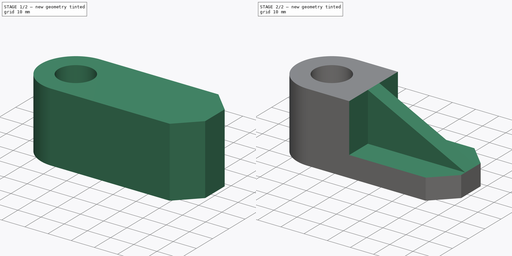
[diagram: build sequence overview — one tinted view per stage of 2, left to right]
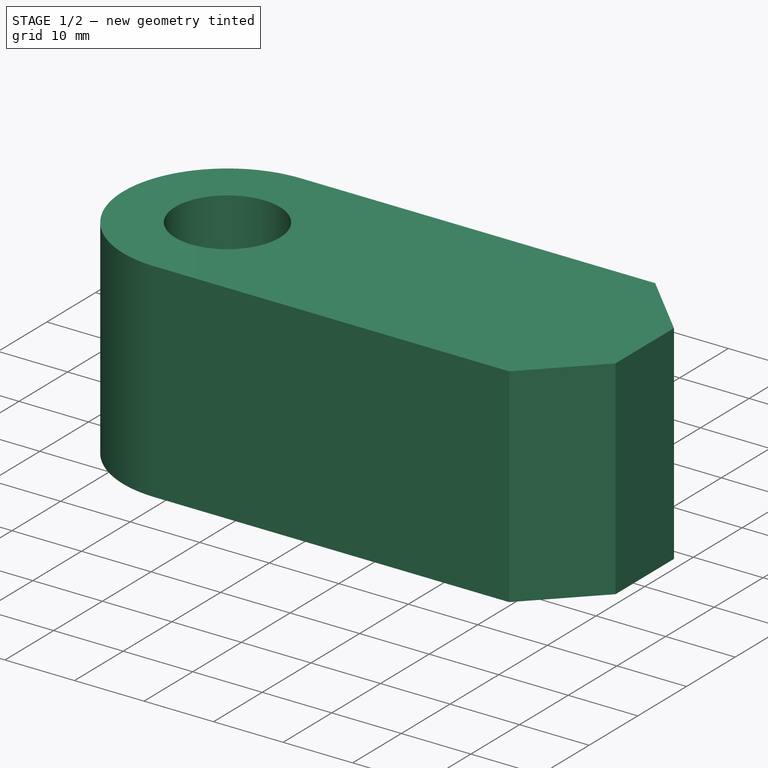
[diagram: stage 1 of 2 — iso view after this stage's code; geometry added in this stage tinted green]
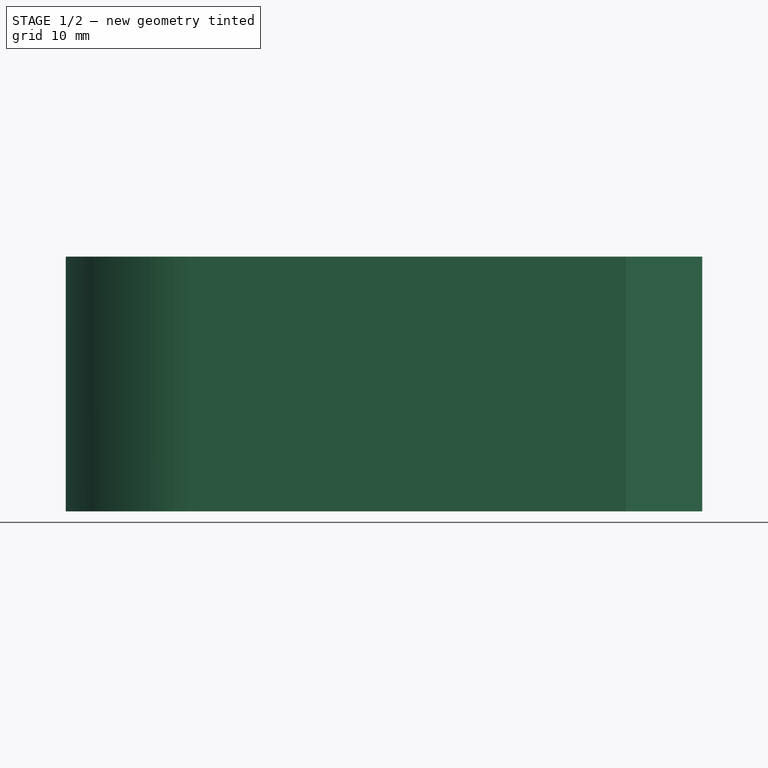
[diagram: stage 1 of 2 — front view after this stage's code; geometry added in this stage tinted green]
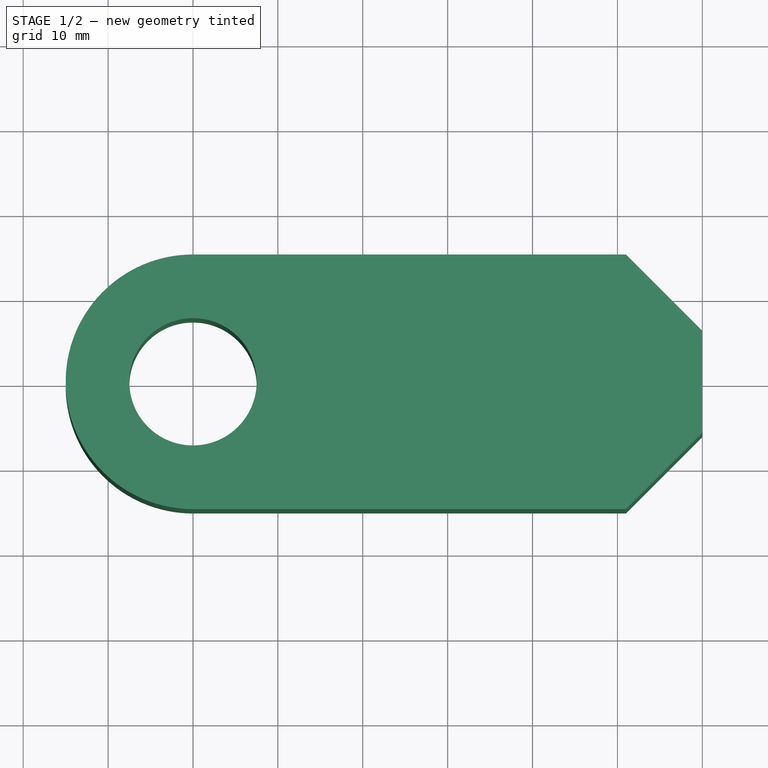
[diagram: stage 1 of 2 — top view after this stage's code; geometry added in this stage tinted green]
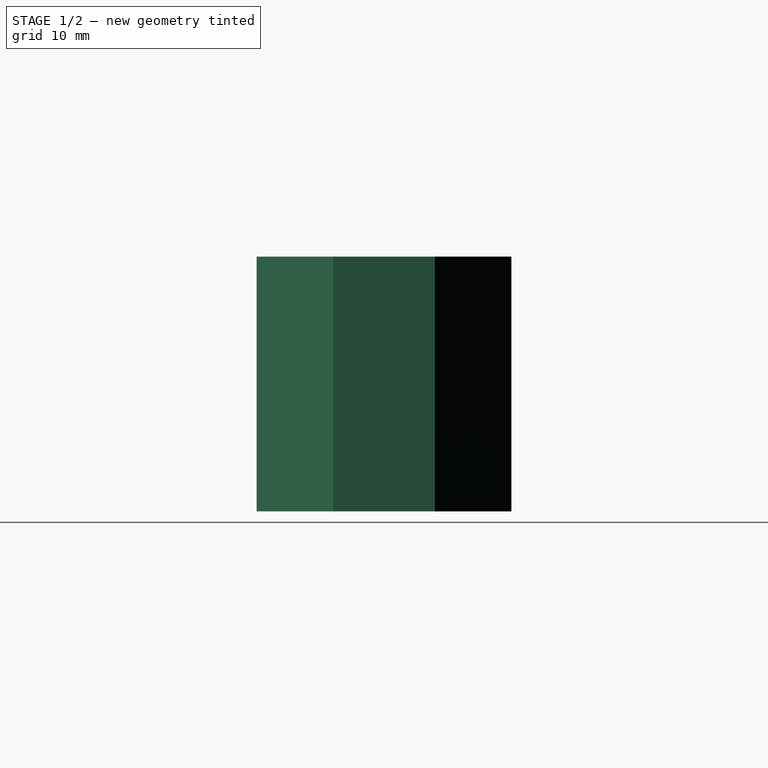
[diagram: stage 1 of 2 — right view after this stage's code; geometry added in this stage tinted green]
FCSTD DOCUMENT  (FreeCAD 0.17R9467 (Git))
Label: Beginner
License: All rights reserved
LicenseURL: http://en.wikipedia.org/wiki/All_rights_reserved
objects: Sketcher::SketchObject×4, PartDesign::Pocket×3, PartDesign::Pad×1, PartDesign::Plane×1, PartDesign::Body×1
note: 14 computed .brp shape members not serialized (recipe doc carries the construction recipe); baked Part::Feature solids carry a one-line shape summary decoded from their .brp

FEATURE [Sketcher::SketchObject] Sketch
  MapMode = 5
  Support = -> [XY_Plane]
  sketch-geometry (6):
    g0: ArcOfCircle CenterX=-30 CenterY=0 CenterZ=0 NormalX=0 NormalY=0 NormalZ=1 Radius=15 StartAngle=1.5708 EndAngle=4.71239
    g1: LineSegment StartX=-30 StartY=15 StartZ=0 EndX=21 EndY=15 EndZ=0
    g2: LineSegment StartX=21 StartY=15 StartZ=0 EndX=30 EndY=5.99999 EndZ=0
    g3: LineSegment StartX=30 StartY=5.99999 StartZ=0 EndX=30 EndY=-6.00001 EndZ=0
    g4: LineSegment StartX=30 StartY=-6.00001 StartZ=0 EndX=21 EndY=-15 EndZ=0
    g5: LineSegment StartX=21 StartY=-15 StartZ=0 EndX=-30 EndY=-15 EndZ=0
  constraints (19):
    c: PointOnObject(g0,g-1)
    c: Horizontal(g1)
    c: Coincident(g1,g2)
    c: Coincident(g2,g3)
    c: Vertical(g3)
    c: Coincident(g3,g4)
    c: Coincident(g4,g5)
    c: Horizontal(g5)
    c: Coincident(g0,g5)
    c: Coincident(g0,g1)
    c: Equal(g1,g5)
    c: DistanceX(g2) = 30
    c: Tangent(g1,g0)
    c: Tangent(g5,g0)
    c: Equal(g4,g2)
    c: DistanceY(g3,g3) = 12
    c: DistanceX(g4,g3) = 9
    c: DistanceY(g4,g3) = 9
    c: DistanceX(g0,g3) = 60
FEATURE [PartDesign::Pad] Pad
  Length = 30
  Length2 = 100
  Profile = -> Sketch
  Type = 0
FEATURE [Sketcher::SketchObject] Sketch001
  MapMode = 5
  Support = -> [XY_Plane]
  sketch-geometry (1):
    g0: Circle CenterX=-30 CenterY=0 CenterZ=0 NormalX=0 NormalY=0 NormalZ=1 Radius=7.5
  constraints (3):
    c: PointOnObject(g0,g-1)
    c: DistanceX(g0,g-1) = 30
    c: Radius(g0) = 7.5
FEATURE [PartDesign::Pocket] Pocket
  BaseFeature = -> Pad
  Length = 5
  Profile = -> Sketch001
  Reversed = true
  Type = 1
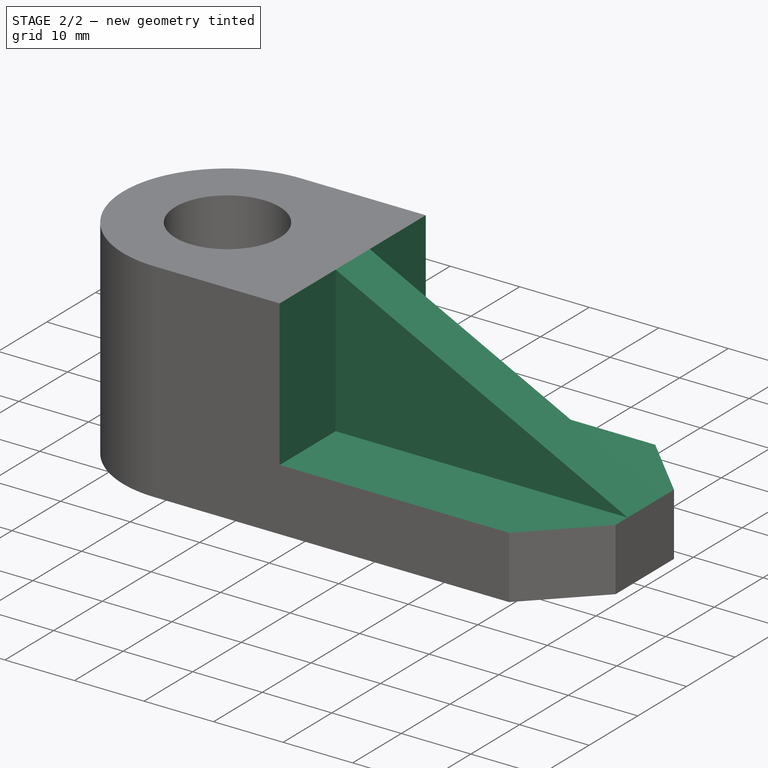
[diagram: stage 2 of 2 — iso view after this stage's code; geometry added in this stage tinted green]
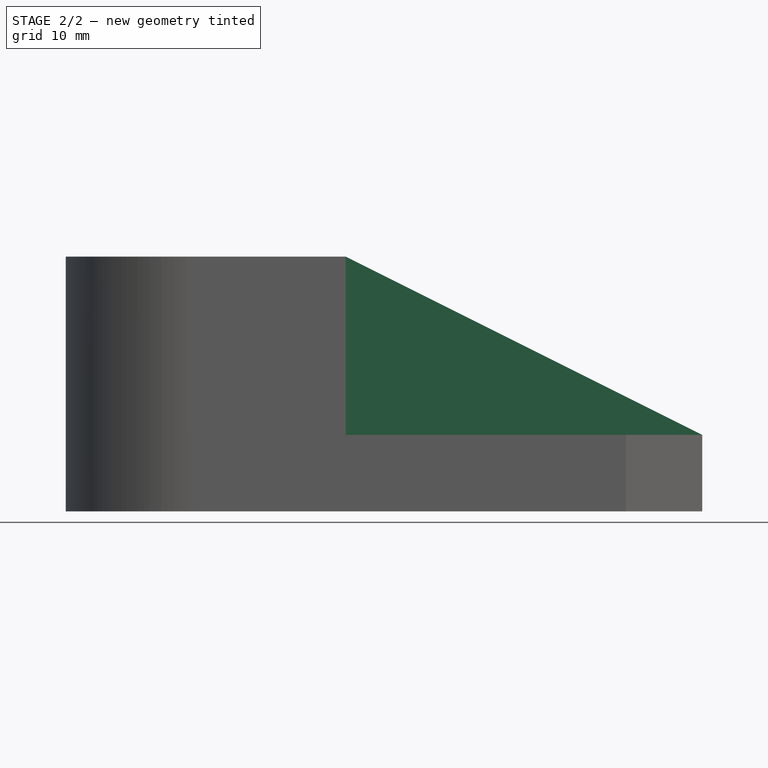
[diagram: stage 2 of 2 — front view after this stage's code; geometry added in this stage tinted green]
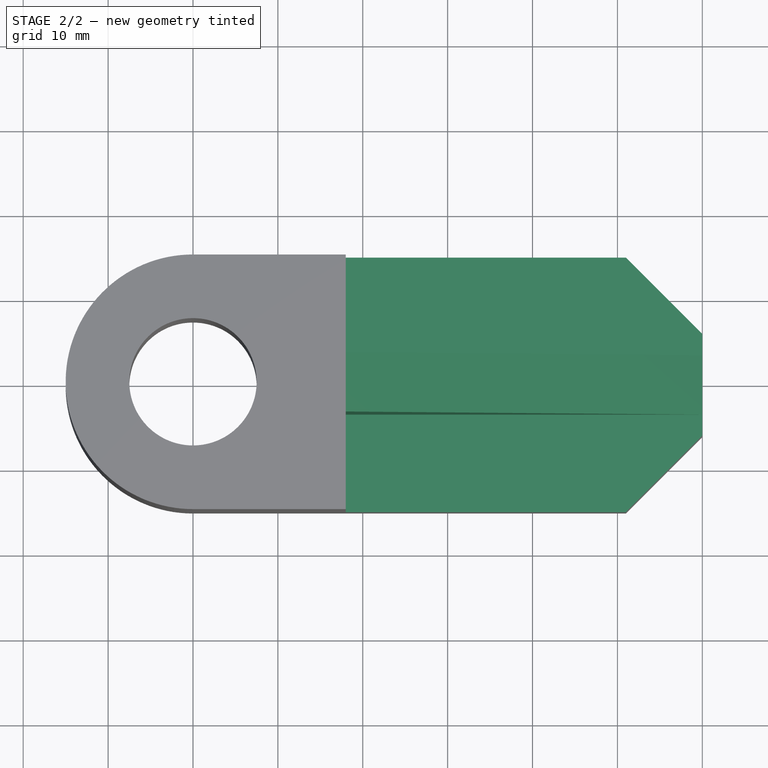
[diagram: stage 2 of 2 — top view after this stage's code; geometry added in this stage tinted green]
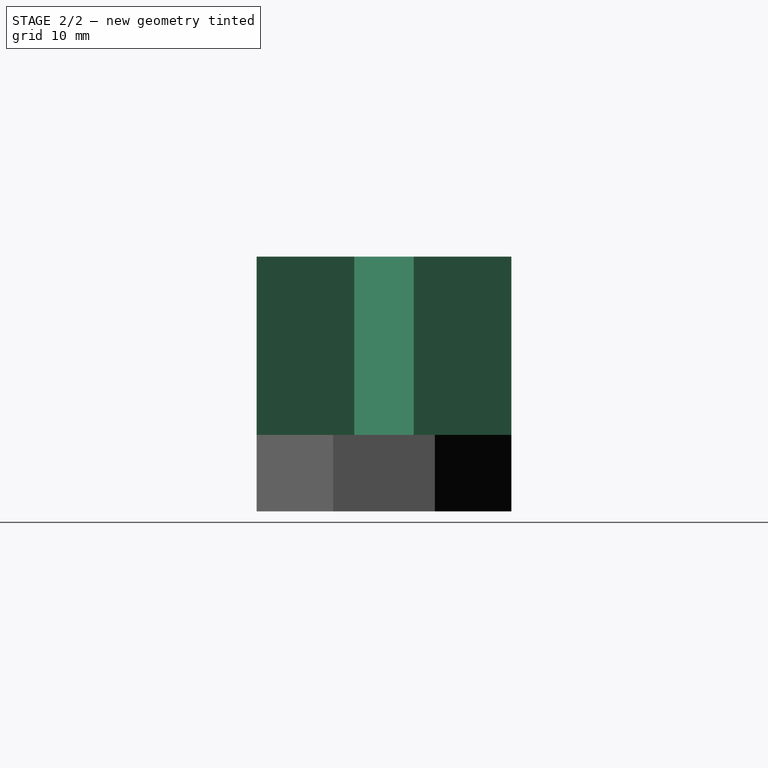
[diagram: stage 2 of 2 — right view after this stage's code; geometry added in this stage tinted green]
FEATURE [Sketcher::SketchObject] Sketch002
  MapMode = 5
  Placement = pos=(0,0,0) rot=(1,0,0;1.5708rad)
  Support = -> [XZ_Plane]
  sketch-geometry (3):
    g0: LineSegment StartX=-12 StartY=30 StartZ=0 EndX=30 EndY=30 EndZ=0
    g1: LineSegment StartX=30 StartY=30 StartZ=0 EndX=30 EndY=9 EndZ=0
    g2: LineSegment StartX=30 StartY=9 StartZ=0 EndX=-12 EndY=30 EndZ=0
  constraints (9):
    c: Horizontal(g0)
    c: Coincident(g0,g1)
    c: Vertical(g1)
    c: Coincident(g1,g2)
    c: Coincident(g2,g0)
    c: DistanceY(g1,g1) = 21
    c: DistanceY(g1) = 9
    c: DistanceX(g0,g0) = 42
    c: DistanceX(g-1,g0) = 30
FEATURE [PartDesign::Pocket] Pocket001
  BaseFeature = -> Pocket
  Length = 5
  Midplane = true
  Profile = -> Sketch002
  Type = 1
FEATURE [PartDesign::Plane] DatumPlane
  MapMode = 2
  Placement = pos=(0,0,30) rot=(0,0,1;0rad)
  Support = -> [XY_Plane]
  superPlacement = pos=(0,0,30) rot=(0,0,1;0rad)
FEATURE [Sketcher::SketchObject] Sketch003
  MapMode = 5
  Placement = pos=(0,0,30) rot=(0,0,1;0rad)
  Support = -> [DatumPlane]
  sketch-geometry (8):
    g0: LineSegment StartX=-12 StartY=16 StartZ=0 EndX=30 EndY=16 EndZ=0
    g1: LineSegment StartX=30 StartY=16 StartZ=0 EndX=30 EndY=3.5 EndZ=0
    g2: LineSegment StartX=30 StartY=3.5 StartZ=0 EndX=-12 EndY=3.5 EndZ=0
    g3: LineSegment StartX=-12 StartY=3.5 StartZ=0 EndX=-12 EndY=16 EndZ=0
    g4: LineSegment StartX=-12 StartY=-3.5 StartZ=0 EndX=30 EndY=-3.5 EndZ=0
    g5: LineSegment StartX=30 StartY=-3.5 StartZ=0 EndX=30 EndY=-16 EndZ=0
    g6: LineSegment StartX=30 StartY=-16 StartZ=0 EndX=-12 EndY=-16 EndZ=0
    g7: LineSegment StartX=-12 StartY=-16 StartZ=0 EndX=-12 EndY=-3.5 EndZ=0
  constraints (23):
    c: Coincident(g0,g1)
    c: Coincident(g1,g2)
    c: Coincident(g2,g3)
    c: Coincident(g3,g0)
    c: Horizontal(g0)
    c: Horizontal(g2)
    c: Vertical(g1)
    c: Vertical(g3)
    c: Coincident(g4,g5)
    c: Coincident(g5,g6)
    c: Coincident(g6,g7)
    c: Coincident(g7,g4)
    c: Horizontal(g4)
    c: Horizontal(g6)
    c: Vertical(g5)
    c: Vertical(g7)
    c: Symmetric(g6,g0,g-1)
    c: Equal(g7,g3)
    c: Equal(g2,g4)
    c: DistanceX(g0,g0) = 42
    c: DistanceX(g0) = 30
    c: DistanceY(g4,g2) = 7
    c: DistanceY(g6,g0) = 32
FEATURE [PartDesign::Pocket] Pocket002
  BaseFeature = -> Pocket001
  Length = 21
  Profile = -> Sketch003
  Type = 0
FEATURE [PartDesign::Body] Body
  Model = -> [Sketch,Pad,Sketch001,Pocket,Sketch002,Pocket001,DatumPlane,Sketch003,Pocket002]
  Origin = -> BodyOrigin
  Tip = -> Pocket002
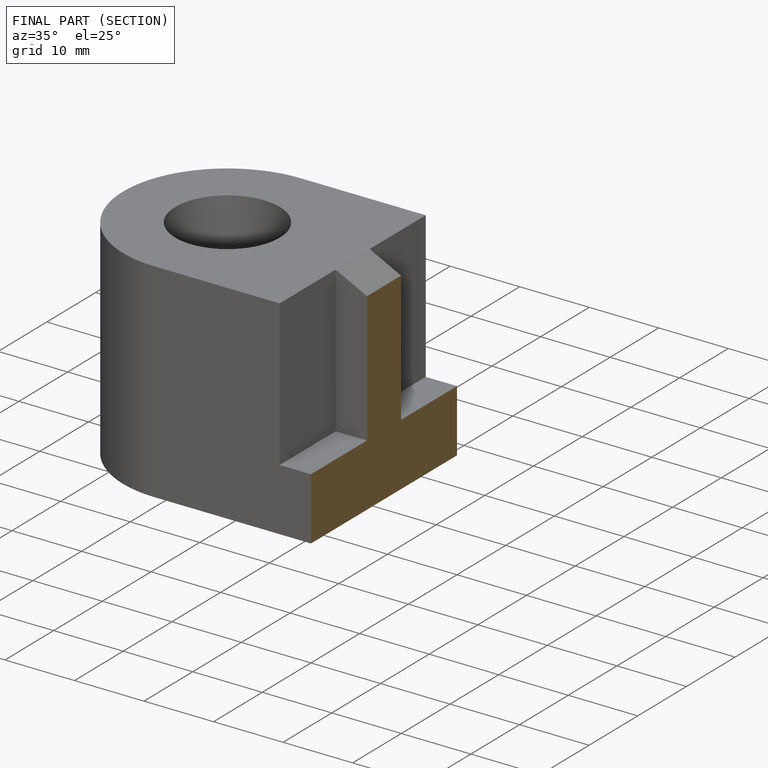
[diagram: finished part — half-section view (interior)]
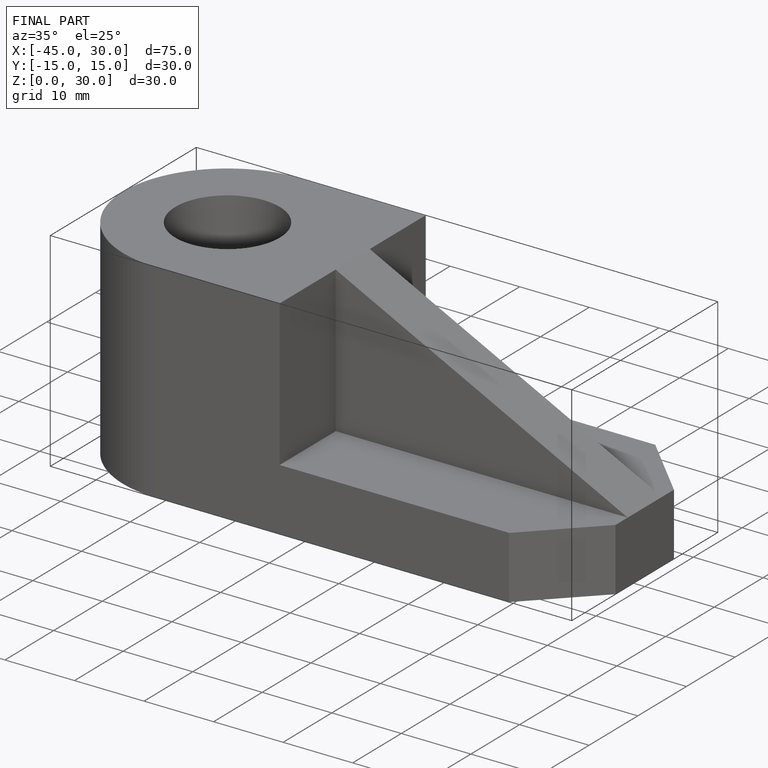
[diagram: finished part — iso view with bounding-box wireframe]
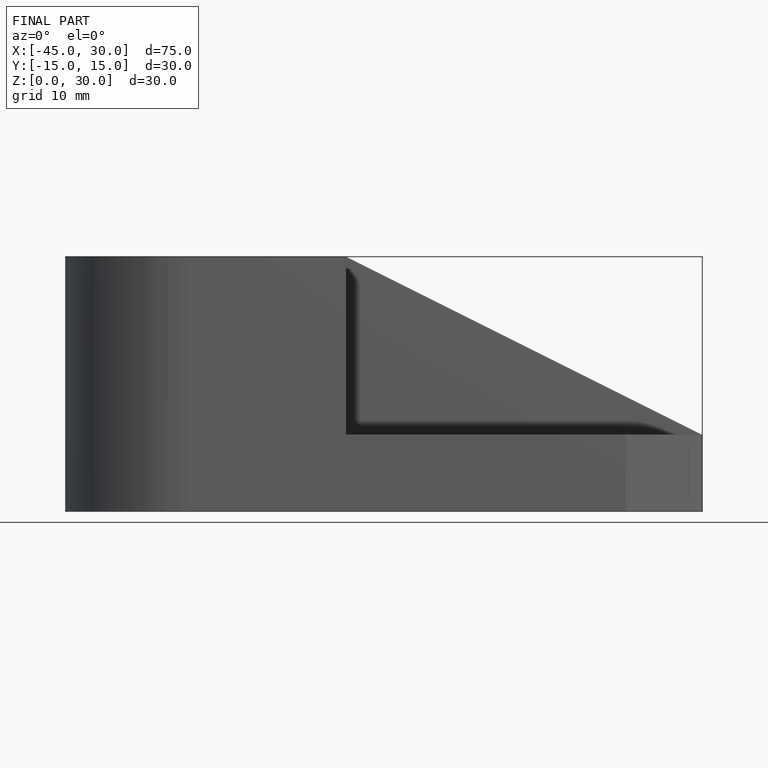
[diagram: finished part — front view with bounding-box wireframe]
